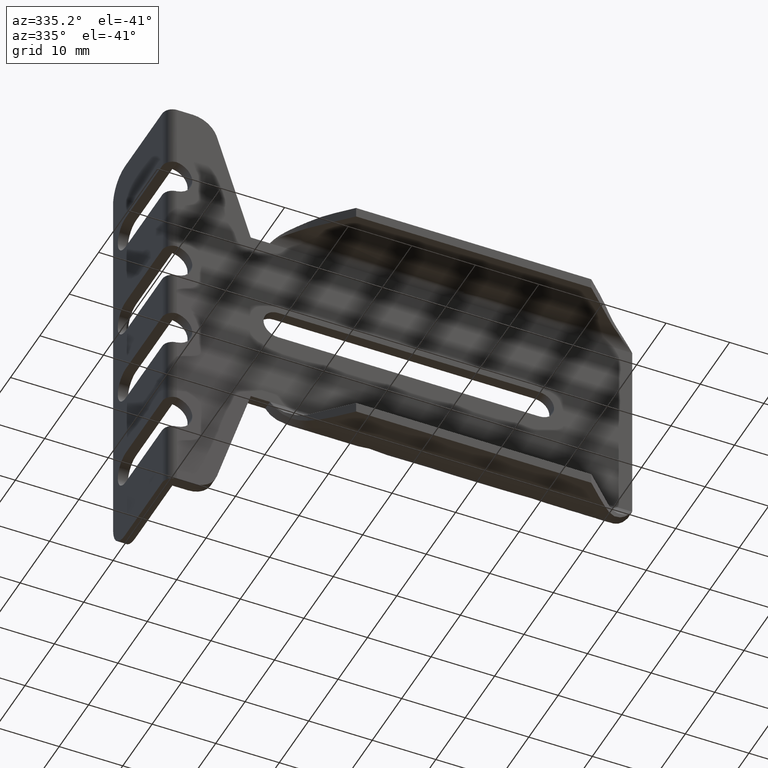
[diagram: clean part render]
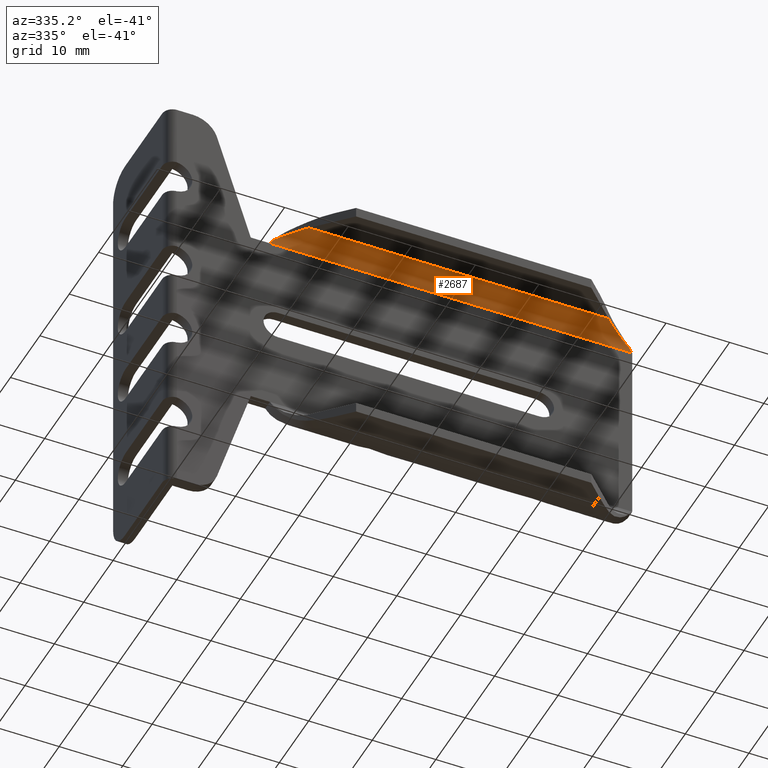
[diagram: same view with one face highlighted and labeled with its STEP entity id]
A machine part, auxiliary view. The second image highlights one B-rep face of the part: STEP entity #2687.
In plain terms, the highlighted face is a freeform B-spline surface patch.
Its self-contained STEP definition (entity closure, byte-faithful):
#1380=CARTESIAN_POINT('',(16.199999999999999,-18.300000000000001,15.0));
#1381=VERTEX_POINT('',#1380);
#1759=CARTESIAN_POINT('',(20.998919068217049,-20.798919006859251,17.645689718135749));
#1760=VERTEX_POINT('',#1759);
#1766=CARTESIAN_POINT('',(21.150001588692501,-20.950001529116999,17.649999999999999));
#1767=VERTEX_POINT('',#1766);
#1768=CARTESIAN_POINT('',(20.998919068217049,-20.798919006859251,17.645689718135749));
#1769=CARTESIAN_POINT('',(21.074398843747069,-20.874398783279677,17.649999999999803));
#1770=CARTESIAN_POINT('',(21.150001588692501,-20.950001529116999,17.649999999999999));
#1778=(BOUNDED_CURVE()B_SPLINE_CURVE(2,(#1768,#1769,#1770),.UNSPECIFIED.,.F.,.U.)CURVE()GEOMETRIC_REPRESENTATION_ITEM()QUASI_UNIFORM_CURVE()RATIONAL_B_SPLINE_CURVE((1.0,0.999593287162408,1.0))REPRESENTATION_ITEM(''));
#1779=EDGE_CURVE('',#1760,#1767,#1778,.T.);
#1804=CARTESIAN_POINT('',(16.717144232913451,-18.407053340485451,15.745600653184500));
#1805=VERTEX_POINT('',#1804);
#1829=CARTESIAN_POINT('',(20.998919068217042,-20.798919006859268,17.645689718135721));
#1830=CARTESIAN_POINT('',(20.839683549855280,-20.639683486618981,17.636596554276970));
#1831=CARTESIAN_POINT('',(20.676336394302329,-20.488256455823279,17.613665832358318));
#1832=CARTESIAN_POINT('',(20.341414795661041,-20.199748290856832,17.545894318641210));
#1833=CARTESIAN_POINT('',(20.169841478532241,-20.062675585406531,17.501009562963208));
#1834=CARTESIAN_POINT('',(19.906269339049729,-19.867317223264351,17.419766378219339));
#1835=CARTESIAN_POINT('',(19.817172412423432,-19.803779382388068,17.390273460422399));
#1836=CARTESIAN_POINT('',(19.638747970630750,-19.681316390280401,17.327589017728521));
#1837=CARTESIAN_POINT('',(19.549245694081119,-19.622250461989200,17.294352172462471));
#1838=CARTESIAN_POINT('',(19.279824872475519,-19.451169345686381,17.189497269647148));
#1839=CARTESIAN_POINT('',(19.098985444355279,-19.345251180635490,17.112772843273799));
#1840=CARTESIAN_POINT('',(18.734790976019930,-19.148253935731290,16.947495541307429));
#1841=CARTESIAN_POINT('',(18.551431548730388,-19.057181360059161,16.858944659035259));
#1842=CARTESIAN_POINT('',(18.182400863739790,-18.889019678001240,16.670568113911848));
#1843=CARTESIAN_POINT('',(17.996623931080499,-18.811899430261992,16.570727959401939));
#1844=CARTESIAN_POINT('',(17.623872798079191,-18.671351124811959,16.358830339140319));
#1845=CARTESIAN_POINT('',(17.438202704104881,-18.608429853653369,16.247685753296519));
#1846=CARTESIAN_POINT('',(17.162919595179119,-18.524673605287340,16.069851688217600));
#1847=CARTESIAN_POINT('',(17.071703093389441,-18.498531418866929,16.008677665499420));
#1848=CARTESIAN_POINT('',(16.891993172334839,-18.449989824152279,15.881520390145910));
#1849=CARTESIAN_POINT('',(16.803345579028260,-18.427552519274450,15.815515080488510));
#1850=CARTESIAN_POINT('',(16.717144232913451,-18.407053340485451,15.745600653184500));
#1851=B_SPLINE_CURVE_WITH_KNOTS('',3,(#1829,#1830,#1831,#1832,#1833,#1834,#1835,#1836,#1837,#1838,#1839,#1840,#1841,#1842,#1843,#1844,#1845,#1846,#1847,#1848,#1849,#1850),.UNSPECIFIED.,.F.,.U.,(4,2,2,2,2,2,2,2,2,2,4),(0.0,0.124999999999998,0.249999999999996,0.312499999999996,0.374999999999996,0.499999999999997,0.624999999999997,0.749999999999997,0.874999999999998,0.937499999999999,1.0),.UNSPECIFIED.);
#1852=EDGE_CURVE('',#1760,#1805,#1851,.T.);
#1998=CARTESIAN_POINT('',(68.249998411307402,-20.950001529116999,17.649999999999999));
#1999=VERTEX_POINT('',#1998);
#2000=CARTESIAN_POINT('',(68.401080931782886,-20.798919006859251,17.645689718135749));
#2001=VERTEX_POINT('',#2000);
#2002=CARTESIAN_POINT('',(68.249998411307402,-20.950001529116999,17.649999999999999));
#2003=CARTESIAN_POINT('',(68.325601156253114,-20.874398783279382,17.649999999999807));
#2004=CARTESIAN_POINT('',(68.401080931782843,-20.798919006859212,17.645689718135721));
#2012=(BOUNDED_CURVE()B_SPLINE_CURVE(2,(#2002,#2003,#2004),.UNSPECIFIED.,.F.,.U.)CURVE()GEOMETRIC_REPRESENTATION_ITEM()QUASI_UNIFORM_CURVE()RATIONAL_B_SPLINE_CURVE((1.0,0.999593287162464,1.0))REPRESENTATION_ITEM(''));
#2013=EDGE_CURVE('',#1999,#2001,#2012,.T.);
#2073=CARTESIAN_POINT('',(72.682855767080099,-18.407053340486002,15.745600653193399));
#2074=VERTEX_POINT('',#2073);
#2097=CARTESIAN_POINT('',(72.682855767080099,-18.407053340486002,15.745600653193399));
#2098=CARTESIAN_POINT('',(72.596801849798183,-18.427517459846701,15.815395506926460));
#2099=CARTESIAN_POINT('',(72.507675561924955,-18.450074501944481,15.881765797680330));
#2100=CARTESIAN_POINT('',(72.327761803360957,-18.498680779889401,16.009045221138450));
#2101=CARTESIAN_POINT('',(72.236944755277165,-18.524719453662321,16.069932746992169));
#2102=CARTESIAN_POINT('',(71.963252006189705,-18.607978127803811,16.246759104523470));
#2103=CARTESIAN_POINT('',(71.779193988680134,-18.670325484794660,16.356977698905819));
#2104=CARTESIAN_POINT('',(71.410627846718910,-18.809037995945520,16.566711795640408));
#2105=CARTESIAN_POINT('',(71.226046703644201,-18.885406556422680,16.666095359429399));
#2106=CARTESIAN_POINT('',(70.857116574636663,-19.053060446732790,16.854734509585452));
#2107=CARTESIAN_POINT('',(70.672750240058491,-19.144340311154298,16.943963181960029));
#2108=CARTESIAN_POINT('',(70.396431058783463,-19.293560074377279,17.069523922104381));
#2109=CARTESIAN_POINT('',(70.304483011826747,-19.345299558227531,17.109922292781871));
#2110=CARTESIAN_POINT('',(70.122291098885100,-19.452107371997450,17.187042147552479));
#2111=CARTESIAN_POINT('',(70.031853804594448,-19.507278313764921,17.223852607564169));
#2112=CARTESIAN_POINT('',(69.762514404852269,-19.678232490234919,17.328729710888041));
#2113=CARTESIAN_POINT('',(69.585586506967132,-19.799438182392869,17.391287034503979));
#2114=CARTESIAN_POINT('',(69.236927731983016,-20.057460431435409,17.499083783208061));
#2115=CARTESIAN_POINT('',(69.065198367332130,-20.194265078855601,17.544352820475329));
#2116=CARTESIAN_POINT('',(68.811397600576186,-20.412578436053039,17.596010153622188));
#2117=CARTESIAN_POINT('',(68.727443193262843,-20.487547292568291,17.610482740683128));
#2118=CARTESIAN_POINT('',(68.562408933863423,-20.640609754687379,17.633013619660371));
#2119=CARTESIAN_POINT('',(68.481126844026562,-20.718873093671260,17.641118686473028));
#2120=CARTESIAN_POINT('',(68.401080931782886,-20.798919006859251,17.645689718135699));
#2121=B_SPLINE_CURVE_WITH_KNOTS('',3,(#2097,#2098,#2099,#2100,#2101,#2102,#2103,#2104,#2105,#2106,#2107,#2108,#2109,#2110,#2111,#2112,#2113,#2114,#2115,#2116,#2117,#2118,#2119,#2120),.UNSPECIFIED.,.F.,.U.,(4,2,2,2,2,2,2,2,2,2,2,4),(0.0,0.062499999999998,0.124999999999997,0.249999999999994,0.374999999999992,0.499999999999989,0.562499999999991,0.624999999999993,0.749999999999998,0.875000000000002,0.937500000000001,1.0),.UNSPECIFIED.);
#2122=EDGE_CURVE('',#2074,#2001,#2121,.T.);
#2488=CARTESIAN_POINT('',(73.200000000000003,-18.300000000000001,14.999998470882820));
#2489=VERTEX_POINT('',#2488);
#2571=CARTESIAN_POINT('',(72.682855767080099,-18.407053340486002,15.745600653193399));
#2572=CARTESIAN_POINT('',(72.773758135913454,-18.372486905066172,15.627708122108411));
#2573=CARTESIAN_POINT('',(72.862367664407302,-18.345876625998400,15.506746456203119));
#2574=CARTESIAN_POINT('',(73.034810383082245,-18.309639523474878,15.258355772081909));
#2575=CARTESIAN_POINT('',(73.118644119459404,-18.300000109400401,15.130929414129049));
#2576=CARTESIAN_POINT('',(73.200000000000003,-18.300000000000001,14.999998470882820));
#2577=B_SPLINE_CURVE_WITH_KNOTS('',3,(#2571,#2572,#2573,#2574,#2575,#2576),.UNSPECIFIED.,.F.,.U.,(4,2,4),(0.0,0.500000000000000,1.0),.UNSPECIFIED.);
#2578=EDGE_CURVE('',#2074,#2489,#2577,.T.);
#2643=CARTESIAN_POINT('',(16.199999999999999,-18.300000000000001,15.0));
#2644=CARTESIAN_POINT('',(16.281627831613608,-18.300000085206261,15.131368942889891));
#2645=CARTESIAN_POINT('',(16.365602963465381,-18.309700572432529,15.258974096138671));
#2646=CARTESIAN_POINT('',(16.538051974397280,-18.345990745529559,15.507330086970599));
#2647=CARTESIAN_POINT('',(16.626526490228571,-18.372595136693139,15.628077624155480));
#2648=CARTESIAN_POINT('',(16.717144232913451,-18.407053340485451,15.745600653184500));
#2649=B_SPLINE_CURVE_WITH_KNOTS('',3,(#2643,#2644,#2645,#2646,#2647,#2648),.UNSPECIFIED.,.F.,.U.,(4,2,4),(0.000000212329989,0.500000000000000,1.0),.UNSPECIFIED.);
#2650=EDGE_CURVE('',#1381,#1805,#2649,.T.);
#2655=CARTESIAN_POINT('',(14.775000000000000,-21.019372010753660,17.649091870632979));
#2656=CARTESIAN_POINT('',(74.660625000000010,-21.019372010753660,17.649091870632979));
#2657=CARTESIAN_POINT('',(14.774999999999997,-18.101289672821835,17.725506230827634));
#2658=CARTESIAN_POINT('',(74.660624999999996,-18.101289672821835,17.725506230827634));
#2659=CARTESIAN_POINT('',(14.775000000000006,-18.306560157074472,14.813649827484857));
#2660=CARTESIAN_POINT('',(74.660625000000024,-18.306560157074472,14.813649827484857));
#2668=(BOUNDED_SURFACE()B_SPLINE_SURFACE(1,2,((#2655,#2657,#2659),(#2656,#2658,#2660)),.UNSPECIFIED.,.F.,.F.,.U.)B_SPLINE_SURFACE_WITH_KNOTS((2,2),(3,3),(0.0,59.885625000000019),(0.0,4.693532152043999),.UNSPECIFIED.)GEOMETRIC_REPRESENTATION_ITEM()RATIONAL_B_SPLINE_SURFACE(((1.0,0.670944067015488,0.996392957464386),(1.0,0.670944067015488,0.996392957464386)))REPRESENTATION_ITEM('')SURFACE());
#2669=ORIENTED_EDGE('',*,*,#1779,.F.);
#2670=ORIENTED_EDGE('',*,*,#1852,.T.);
#2671=ORIENTED_EDGE('',*,*,#2650,.F.);
#2672=CARTESIAN_POINT('',(16.199999999999999,-18.300000000000001,15.0));
#2673=CARTESIAN_POINT('',(73.200000000000003,-18.300000000000001,14.999998470882820));
#2674=QUASI_UNIFORM_CURVE('',1,(#2672,#2673),.UNSPECIFIED.,.F.,.U.);
#2675=EDGE_CURVE('',#1381,#2489,#2674,.T.);
#2676=ORIENTED_EDGE('',*,*,#2675,.T.);
#2677=ORIENTED_EDGE('',*,*,#2578,.F.);
#2678=ORIENTED_EDGE('',*,*,#2122,.T.);
#2679=ORIENTED_EDGE('',*,*,#2013,.F.);
#2680=CARTESIAN_POINT('',(21.150001588692501,-20.950001529116999,17.649999999999999));
#2681=CARTESIAN_POINT('',(68.249998411307402,-20.950001529116999,17.649999999999999));
#2682=QUASI_UNIFORM_CURVE('',1,(#2680,#2681),.UNSPECIFIED.,.F.,.U.);
#2683=EDGE_CURVE('',#1767,#1999,#2682,.T.);
#2684=ORIENTED_EDGE('',*,*,#2683,.F.);
#2685=EDGE_LOOP('',(#2669,#2670,#2671,#2676,#2677,#2678,#2679,#2684));
#2686=FACE_OUTER_BOUND('',#2685,.T.);
#2687=ADVANCED_FACE('',(#2686),#2668,.F.);